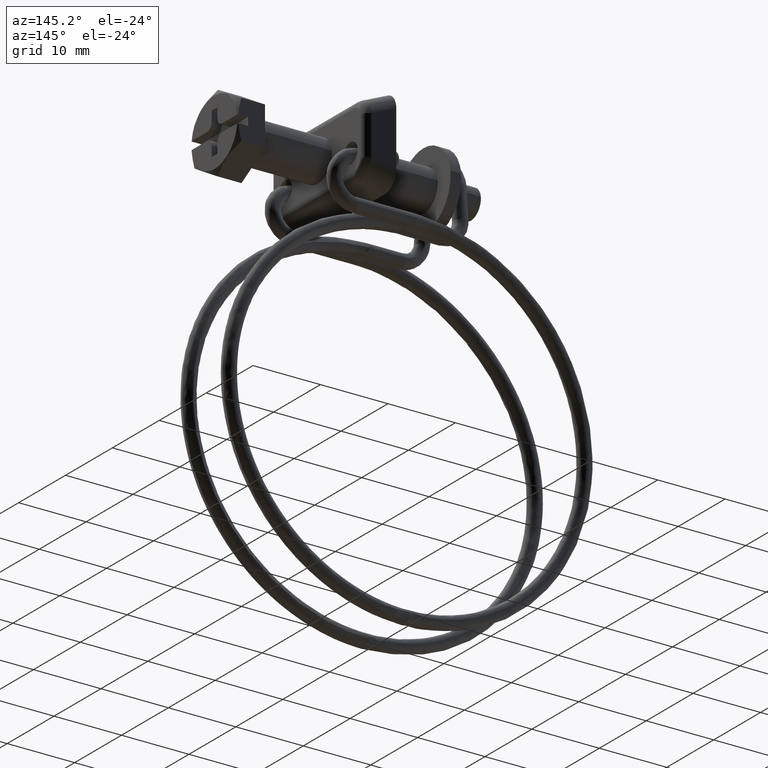
[diagram: clean part render]
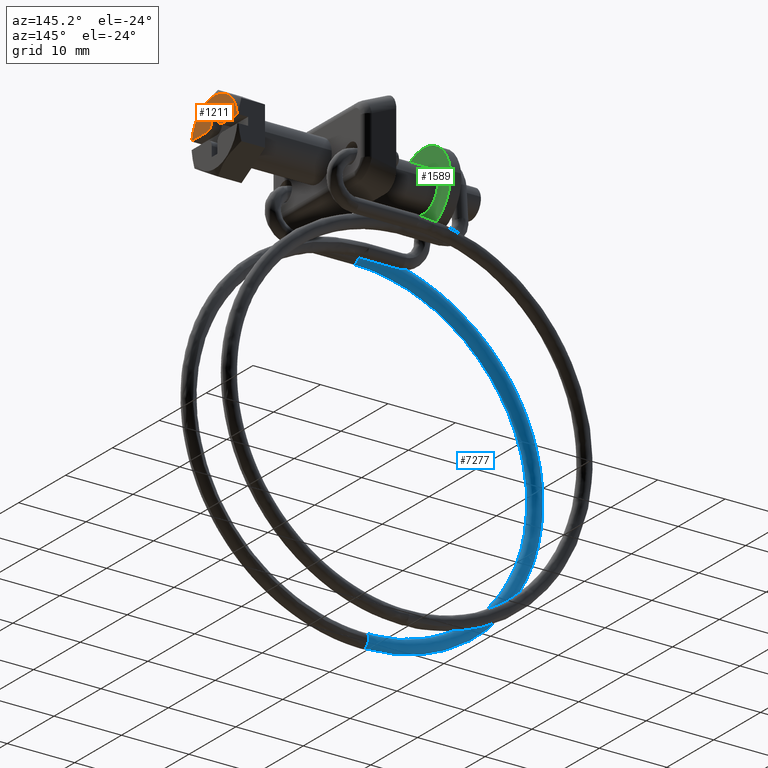
[diagram: same view with three faces highlighted in distinct colors, each labeled with its STEP entity id]
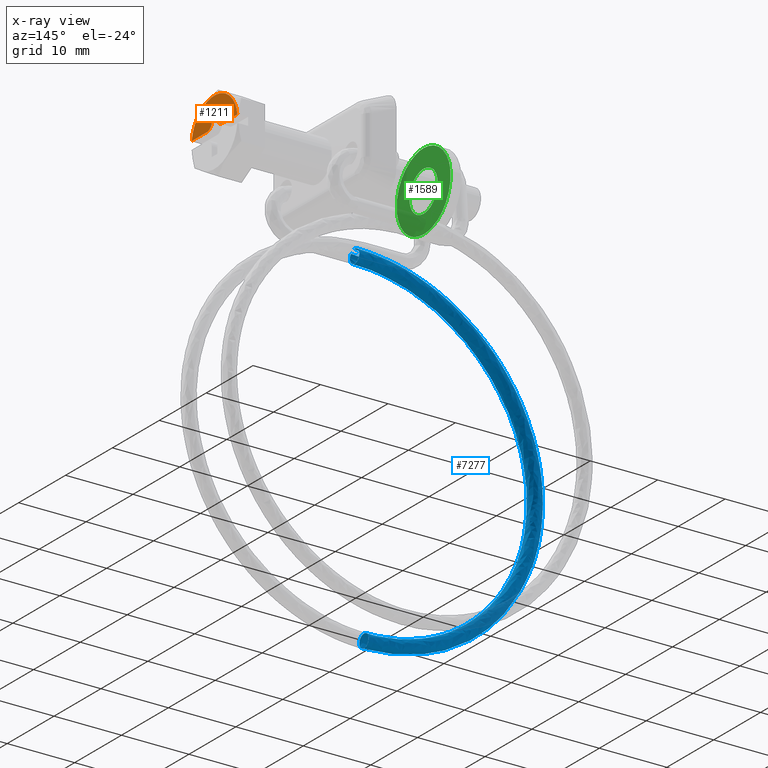
[diagram: x-ray of the same camera — body ghosted, the three highlighted faces saturated]
A machine part, auxiliary view with three faces highlighted in distinct colors.
The next image is the same camera in x-ray (body ghosted, the three faces saturated) — at least one of them is partly hidden behind the body in this view.
Their STEP definitions:

[orange] entity #1211 — the highlighted face is a freeform B-spline surface patch.
#763=CARTESIAN_POINT('',(4.0,0.599999000000025,3.099999000000110));
#764=VERTEX_POINT('',#763);
#765=CARTESIAN_POINT('',(4.0,-0.599998000000198,3.099999000000110));
#766=VERTEX_POINT('',#765);
#767=CARTESIAN_POINT('',(4.0,0.599999000000025,3.099999000000110));
#768=CARTESIAN_POINT('',(4.0,-0.599998000000198,3.099999000000110));
#769=QUASI_UNIFORM_CURVE('',1,(#767,#768),.UNSPECIFIED.,.F.,.U.);
#770=EDGE_CURVE('',#764,#766,#769,.T.);
#791=CARTESIAN_POINT('',(4.0,0.599999000000025,1.600000000000000));
#792=VERTEX_POINT('',#791);
#793=CARTESIAN_POINT('',(4.0,0.599999000000025,1.600000000000000));
#794=CARTESIAN_POINT('',(4.0,0.599999000000025,3.099999000000110));
#795=QUASI_UNIFORM_CURVE('',1,(#793,#794),.UNSPECIFIED.,.F.,.U.);
#796=EDGE_CURVE('',#792,#764,#795,.T.);
#822=CARTESIAN_POINT('',(4.0,1.599999000000025,0.600000000000108));
#823=VERTEX_POINT('',#822);
#824=CARTESIAN_POINT('',(4.0,0.599999000000025,1.600000000000000));
#825=CARTESIAN_POINT('',(4.000000000000000,0.599999000000025,0.600000000000000));
#826=CARTESIAN_POINT('',(4.0,1.599999000000025,0.600000000000108));
#834=(BOUNDED_CURVE()B_SPLINE_CURVE(2,(#824,#825,#826),.UNSPECIFIED.,.F.,.U.)CURVE()GEOMETRIC_REPRESENTATION_ITEM()QUASI_UNIFORM_CURVE()RATIONAL_B_SPLINE_CURVE((1.0,0.707106781186548,1.0))REPRESENTATION_ITEM(''));
#835=EDGE_CURVE('',#792,#823,#834,.T.);
#859=CARTESIAN_POINT('',(4.0,4.863124347857450,0.600000000000108));
#860=VERTEX_POINT('',#859);
#868=CARTESIAN_POINT('',(4.0,4.863124347857450,0.600000000000108));
#869=CARTESIAN_POINT('',(4.0,1.599999000000025,0.600000000000108));
#870=QUASI_UNIFORM_CURVE('',1,(#868,#869),.UNSPECIFIED.,.F.,.U.);
#871=EDGE_CURVE('',#860,#823,#870,.T.);
#1103=CARTESIAN_POINT('',(4.0,-1.599998000000085,0.600000000000000));
#1104=VERTEX_POINT('',#1103);
#1110=CARTESIAN_POINT('',(4.0,-4.863124347857450,0.600000000000108));
#1111=VERTEX_POINT('',#1110);
#1112=CARTESIAN_POINT('',(4.0,-1.599998000000085,0.600000000000000));
#1113=CARTESIAN_POINT('',(4.0,-4.863124347857450,0.600000000000108));
#1114=QUASI_UNIFORM_CURVE('',1,(#1112,#1113),.UNSPECIFIED.,.F.,.U.);
#1115=EDGE_CURVE('',#1104,#1111,#1114,.T.);
#1141=CARTESIAN_POINT('',(4.0,-0.599998000000085,1.600000000000000));
#1142=VERTEX_POINT('',#1141);
#1143=CARTESIAN_POINT('',(4.0,-1.599998000000085,0.600000000000000));
#1144=CARTESIAN_POINT('',(4.000000000000000,-0.599998000000085,0.600000000000000));
#1145=CARTESIAN_POINT('',(4.0,-0.599998000000085,1.600000000000000));
#1153=(BOUNDED_CURVE()B_SPLINE_CURVE(2,(#1143,#1144,#1145),.UNSPECIFIED.,.F.,.U.)CURVE()GEOMETRIC_REPRESENTATION_ITEM()QUASI_UNIFORM_CURVE()RATIONAL_B_SPLINE_CURVE((1.0,0.707106781186548,1.0))REPRESENTATION_ITEM(''));
#1154=EDGE_CURVE('',#1104,#1142,#1153,.T.);
#1171=CARTESIAN_POINT('',(4.0,-0.599998000000198,3.099999000000110));
#1172=CARTESIAN_POINT('',(4.0,-0.599998000000085,1.600000000000000));
#1173=QUASI_UNIFORM_CURVE('',1,(#1171,#1172),.UNSPECIFIED.,.F.,.U.);
#1174=EDGE_CURVE('',#766,#1142,#1173,.T.);
#1182=CARTESIAN_POINT('',(4.0,-5.348950542660116,0.385215133674925));
#1183=CARTESIAN_POINT('',(4.0,5.348950716578997,0.385215133674925));
#1184=CARTESIAN_POINT('',(4.0,-5.348950542660116,5.114782472336790));
#1185=CARTESIAN_POINT('',(4.0,5.348950716578997,5.114782472336790));
#1186=B_SPLINE_SURFACE_WITH_KNOTS('',1,1,((#1182,#1184),(#1183,#1185)),.UNSPECIFIED.,.F.,.F.,.U.,(2,2),(2,2),(0.0,10.697901259239110),(0.0,4.729567338661865),.UNSPECIFIED.);
#1187=ORIENTED_EDGE('',*,*,#1115,.F.);
#1188=ORIENTED_EDGE('',*,*,#1154,.T.);
#1189=ORIENTED_EDGE('',*,*,#1174,.F.);
#1190=ORIENTED_EDGE('',*,*,#770,.F.);
#1191=ORIENTED_EDGE('',*,*,#796,.F.);
#1192=ORIENTED_EDGE('',*,*,#835,.T.);
#1193=ORIENTED_EDGE('',*,*,#871,.F.);
#1194=CARTESIAN_POINT('',(4.0,-4.863124347857444,0.600000000000106));
#1195=CARTESIAN_POINT('',(4.000000000000001,-4.332601479348219,4.899997798236649));
#1196=CARTESIAN_POINT('',(4.0,0.0,4.899997798236650));
#1197=CARTESIAN_POINT('',(4.000000000000001,4.332601479348219,4.899997798236649));
#1198=CARTESIAN_POINT('',(4.0,4.863124347857444,0.600000000000107));
#1206=(BOUNDED_CURVE()B_SPLINE_CURVE(2,(#1194,#1195,#1196,#1197,#1198),.UNSPECIFIED.,.F.,.U.)B_SPLINE_CURVE_WITH_KNOTS((3,2,3),(0.0,0.500000000000000,1.0),.UNSPECIFIED.)CURVE()GEOMETRIC_REPRESENTATION_ITEM()RATIONAL_B_SPLINE_CURVE((1.0,0.749149195625625,1.0,0.749149195625625,1.0))REPRESENTATION_ITEM(''));
#1207=EDGE_CURVE('',#1111,#860,#1206,.T.);
#1208=ORIENTED_EDGE('',*,*,#1207,.F.);
#1209=EDGE_LOOP('',(#1187,#1188,#1189,#1190,#1191,#1192,#1193,#1208));
#1210=FACE_OUTER_BOUND('',#1209,.T.);
#1211=ADVANCED_FACE('',(#1210),#1186,.T.);

[blue] entity #7277 — the highlighted face is a freeform B-spline surface patch.
#4600=CARTESIAN_POINT('',(-21.150000000000951,-6.031830840989082,-6.889972466397994));
#4601=VERTEX_POINT('',#4600);
#4607=CARTESIAN_POINT('',(-21.150000000000951,-6.387194317541485,-6.852984781403181));
#4608=VERTEX_POINT('',#4607);
#4609=CARTESIAN_POINT('',(-21.150000000000951,-6.031830840989082,-6.889972466397994));
#4610=CARTESIAN_POINT('',(-21.150000000000951,-6.146864390291085,-6.856699426546245));
#4611=CARTESIAN_POINT('',(-21.150000000000951,-6.267732507744691,-6.843586101294443));
#4612=CARTESIAN_POINT('',(-21.150000000000951,-6.387194317541485,-6.852984781403181));
#4613=B_SPLINE_CURVE_WITH_KNOTS('',3,(#4609,#4610,#4611,#4612),.UNSPECIFIED.,.F.,.U.,(4,4),(0.942811783970586,1.0),.UNSPECIFIED.);
#4614=EDGE_CURVE('',#4601,#4608,#4613,.T.);
#4616=CARTESIAN_POINT('',(-21.150000000000951,-7.089616038591515,-7.223776114276905));
#4617=VERTEX_POINT('',#4616);
#4627=CARTESIAN_POINT('',(-21.150000000000951,-6.232809605149675,-8.847017218596639));
#4628=VERTEX_POINT('',#4627);
#4629=CARTESIAN_POINT('',(-21.150000000000951,-7.089616038591515,-7.223776114276905));
#4630=CARTESIAN_POINT('',(-21.150000000000951,-7.246677353475226,-7.419852851303408));
#4631=CARTESIAN_POINT('',(-21.150000000000951,-7.326418725889536,-7.676615968585987));
#4632=CARTESIAN_POINT('',(-21.150000000000951,-7.286809268347450,-8.188211591850259));
#4633=CARTESIAN_POINT('',(-21.150000000000951,-7.159273274820140,-8.439303261629041));
#4634=CARTESIAN_POINT('',(-21.150000000000951,-6.761558029072670,-8.779859073659999));
#4635=CARTESIAN_POINT('',(-21.150000000000951,-6.493827840804119,-8.867226130191499));
#4636=CARTESIAN_POINT('',(-21.150000000000951,-6.232809605149675,-8.847017218596639));
#4637=B_SPLINE_CURVE_WITH_KNOTS('',3,(#4629,#4630,#4631,#4632,#4633,#4634,#4635,#4636),.UNSPECIFIED.,.F.,.U.,(4,2,2,4),(0.130000056805628,0.250000000000000,0.375000000000000,0.500000000000000),.UNSPECIFIED.);
#4638=EDGE_CURVE('',#4617,#4628,#4637,.T.);
#4640=CARTESIAN_POINT('',(-21.150000000000951,-5.310171806506379,-7.833820450531610));
#4641=VERTEX_POINT('',#4640);
#4642=CARTESIAN_POINT('',(-21.150000000000951,-6.232809605149675,-8.847017218596639));
#4643=CARTESIAN_POINT('',(-21.150000000000951,-5.971785953663127,-8.826808232096671));
#4644=CARTESIAN_POINT('',(-21.150000000000951,-5.720686803928123,-8.699272135115836));
#4645=CARTESIAN_POINT('',(-21.150000000000951,-5.393365281887371,-8.317028930544577));
#4646=CARTESIAN_POINT('',(-21.150000000000951,-5.306840125982963,-8.075071297144126));
#4647=CARTESIAN_POINT('',(-21.150000000000951,-5.310171806506379,-7.833820450531610));
#4648=B_SPLINE_CURVE_WITH_KNOTS('',3,(#4642,#4643,#4644,#4645,#4646,#4647),.UNSPECIFIED.,.F.,.U.,(4,2,4),(0.500000000000000,0.625000000000000,0.740274298675809),.UNSPECIFIED.);
#4649=EDGE_CURVE('',#4628,#4641,#4648,.T.);
#4724=CARTESIAN_POINT('',(-21.150000000000951,-5.310171806506379,-7.833820450531610));
#4725=CARTESIAN_POINT('',(-21.150000000000951,-5.310452003186184,-7.813459730732497));
#4726=CARTESIAN_POINT('',(-21.150000000000951,-5.311371785250680,-7.793103891826287));
#4727=CARTESIAN_POINT('',(-21.150000000000951,-5.333133947655190,-7.511684642209672));
#4728=CARTESIAN_POINT('',(-21.150000000000951,-5.460647574557894,-7.260484940485839));
#4729=CARTESIAN_POINT('',(-21.150000000000951,-5.767352415556150,-6.997678151845808));
#4730=CARTESIAN_POINT('',(-21.150000000000951,-5.895490085431421,-6.929652589896923));
#4731=CARTESIAN_POINT('',(-21.150000000000951,-6.031830840989082,-6.889972466397994));
#4732=B_SPLINE_CURVE_WITH_KNOTS('',3,(#4724,#4725,#4726,#4727,#4728,#4729,#4730,#4731),.UNSPECIFIED.,.F.,.U.,(4,2,2,4),(0.740274298675810,0.750000000000000,0.875000000000000,0.942811783970586),.UNSPECIFIED.);
#4733=EDGE_CURVE('',#4641,#4601,#4732,.T.);
#6112=CARTESIAN_POINT('',(-21.149999999998919,-4.300002000000003,-58.850000999999999));
#6113=VERTEX_POINT('',#6112);
#6114=CARTESIAN_POINT('',(-21.149999999998901,-3.302485887035315,-59.919730657954759));
#6115=VERTEX_POINT('',#6114);
#6116=CARTESIAN_POINT('',(-21.149999999998919,-4.300002000000003,-58.850000999999999));
#6117=CARTESIAN_POINT('',(-21.149999999998919,-4.038196562363256,-58.850001438668563));
#6118=CARTESIAN_POINT('',(-21.149999999998919,-3.778000607902755,-58.957775164691682));
#6119=CARTESIAN_POINT('',(-21.149999999998919,-3.407742631726005,-59.328016695221827));
#6120=CARTESIAN_POINT('',(-21.149999999998911,-3.299960596688532,-59.588204614319672));
#6121=CARTESIAN_POINT('',(-21.149999999998911,-3.299953531839379,-59.873276473137132));
#6122=CARTESIAN_POINT('',(-21.149999999998911,-3.300804581624378,-59.896535733557762));
#6123=CARTESIAN_POINT('',(-21.149999999998901,-3.302485887035315,-59.919730657954759));
#6124=B_SPLINE_CURVE_WITH_KNOTS('',3,(#6116,#6117,#6118,#6119,#6120,#6121,#6122,#6123),.UNSPECIFIED.,.F.,.U.,(4,2,2,4),(0.500000000000000,0.625000000000000,0.750000000000000,0.761111541812489),.UNSPECIFIED.);
#6125=EDGE_CURVE('',#6113,#6115,#6124,.T.);
#6127=CARTESIAN_POINT('',(-21.149999999998752,-5.028950104822924,-60.534537615100980));
#6128=VERTEX_POINT('',#6127);
#6129=CARTESIAN_POINT('',(-21.149999999998752,-5.028950104822924,-60.534537615100980));
#6130=CARTESIAN_POINT('',(-21.149999999998851,-5.200678408402418,-60.351169861159242));
#6131=CARTESIAN_POINT('',(-21.149999999998869,-5.300001999999999,-60.101328293313877));
#6132=CARTESIAN_POINT('',(-21.149999999998890,-5.300002000000001,-59.588201612200862));
#6133=CARTESIAN_POINT('',(-21.149999999998901,-5.192228903609815,-59.328014341236717));
#6134=CARTESIAN_POINT('',(-21.149999999998919,-4.821988658763284,-58.957774096390189));
#6135=CARTESIAN_POINT('',(-21.149999999998919,-4.561801387799152,-58.850001000000013));
#6136=CARTESIAN_POINT('',(-21.149999999998919,-4.300002000000003,-58.850000999999999));
#6137=B_SPLINE_CURVE_WITH_KNOTS('',3,(#6129,#6130,#6131,#6132,#6133,#6134,#6135,#6136),.UNSPECIFIED.,.F.,.U.,(4,2,2,4),(0.130000056805568,0.250000000000000,0.375000000000000,0.500000000000000),.UNSPECIFIED.);
#6138=EDGE_CURVE('',#6128,#6113,#6137,.T.);
#6140=CARTESIAN_POINT('',(-21.149977872803269,-4.306285019941678,-60.849961522083767));
#6141=VERTEX_POINT('',#6140);
#6216=CARTESIAN_POINT('',(-21.149999999998901,-3.302485887035315,-59.919730657954759));
#6217=CARTESIAN_POINT('',(-21.149997164973339,-3.320535383567858,-60.157462601631323));
#6218=CARTESIAN_POINT('',(-21.149993369964221,-3.426078744593278,-60.388434106579084));
#6219=CARTESIAN_POINT('',(-21.149985258126112,-3.782184756067977,-60.742202801540508));
#6220=CARTESIAN_POINT('',(-21.149980978784949,-4.043596731425591,-60.849967568010037));
#6221=CARTESIAN_POINT('',(-21.149977872803269,-4.306285019941678,-60.849961522083767));
#6222=B_SPLINE_CURVE_WITH_KNOTS('',3,(#6216,#6217,#6218,#6219,#6220,#6221),.UNSPECIFIED.,.F.,.U.,(4,2,4),(0.761111541812488,0.875000000000000,1.0),.UNSPECIFIED.);
#6223=EDGE_CURVE('',#6115,#6141,#6222,.T.);
#7005=CARTESIAN_POINT('',(-20.730799609353920,-5.010252906169817,-60.554501892742493));
#7006=CARTESIAN_POINT('',(-20.733816931504730,-5.193258939862751,-60.369561039536272));
#7007=CARTESIAN_POINT('',(-20.742128439505681,-5.407574417776637,-59.848921838804173));
#7008=CARTESIAN_POINT('',(-20.754231897863590,-5.083829596800820,-59.066174425972449));
#7009=CARTESIAN_POINT('',(-20.758850142397179,-4.300038161162180,-58.741984493368108));
#7010=CARTESIAN_POINT('',(-20.753281102858640,-3.516059640535795,-59.066080283889661));
#7011=CARTESIAN_POINT('',(-20.740765516387508,-3.191961414226734,-59.850012865120043));
#7012=CARTESIAN_POINT('',(-20.728472969448632,-3.521036966530352,-60.644999449539633));
#7013=CARTESIAN_POINT('',(-20.725434740841649,-4.060936566603380,-60.859213814821047));
#7014=CARTESIAN_POINT('',(-20.725745158037519,-4.333648132971815,-60.850000999803719));
#7015=CARTESIAN_POINT('',(-20.870533072902159,-5.010252958038715,-60.554501894124463));
#7016=CARTESIAN_POINT('',(-20.872544621002710,-5.193258991350971,-60.369561041274082));
#7017=CARTESIAN_POINT('',(-20.878085626336681,-5.407574468227073,-59.848921840958312));
#7018=CARTESIAN_POINT('',(-20.886154598575271,-5.083829645763908,-59.066174427497756));
#7019=CARTESIAN_POINT('',(-20.889233428264330,-4.300038209582587,-58.741984493368413));
#7020=CARTESIAN_POINT('',(-20.885520735238650,-3.516059689675545,-59.066080282362577));
#7021=CARTESIAN_POINT('',(-20.877177010924569,-3.191961464929281,-59.850012862961329));
#7022=CARTESIAN_POINT('',(-20.868981979631961,-3.521037018743392,-60.644999448022347));
#7023=CARTESIAN_POINT('',(-20.866956493893980,-4.060936619172594,-60.859213814355421));
#7024=CARTESIAN_POINT('',(-20.867163438691229,-4.333648185492317,-60.850000999869152));
#7025=CARTESIAN_POINT('',(-21.010266536450409,-5.010253009907612,-60.554501895506426));
#7026=CARTESIAN_POINT('',(-21.011272310500679,-5.193259042839192,-60.369561043011878));
#7027=CARTESIAN_POINT('',(-21.014042813167659,-5.407574518677511,-59.848921843112493));
#7028=CARTESIAN_POINT('',(-21.018077299286968,-5.083829694726997,-59.066174429023043));
#7029=CARTESIAN_POINT('',(-21.019616714131491,-4.300038258002995,-58.741984493368697));
#7030=CARTESIAN_POINT('',(-21.017760367618649,-3.516059738815289,-59.066080280835507));
#7031=CARTESIAN_POINT('',(-21.013588505461609,-3.191961515631832,-59.850012860802622));
#7032=CARTESIAN_POINT('',(-21.009490989815308,-3.521037070956433,-60.644999446505132));
#7033=CARTESIAN_POINT('',(-21.008478246946311,-4.060936671741805,-60.859213813889767));
#7034=CARTESIAN_POINT('',(-21.008581719344939,-4.333648238012819,-60.850000999934572));
#7035=CARTESIAN_POINT('',(-24.643153568134849,-5.010254358431013,-60.554501931435823));
#7036=CARTESIAN_POINT('',(-24.618010534224229,-5.193260381465536,-60.369561088192363));
#7037=CARTESIAN_POINT('',(-24.548751596308080,-5.407575830322789,-59.848921899117528));
#7038=CARTESIAN_POINT('',(-24.447894727628441,-5.083830967703173,-59.066174468678987));
#7039=CARTESIAN_POINT('',(-24.409411372815221,-4.300039516870168,-58.741984493376272));
#7040=CARTESIAN_POINT('',(-24.455817604224318,-3.516061016384367,-59.066080241133527));
#7041=CARTESIAN_POINT('',(-24.560108693914799,-3.191962833831709,-59.850012804679082));
#7042=CARTESIAN_POINT('',(-24.662541218214191,-3.521038428427106,-60.644999407058783));
#7043=CARTESIAN_POINT('',(-24.687858463465240,-4.060938038472456,-60.859213801783817));
#7044=CARTESIAN_POINT('',(-24.685271789026078,-4.333649603477083,-60.850001001635611));
#7045=CARTESIAN_POINT('',(-28.133561553254410,-5.037100136020049,-59.859950709026769));
#7046=CARTESIAN_POINT('',(-28.083296025023550,-5.219912902652431,-59.680009771304093));
#7047=CARTESIAN_POINT('',(-27.944834727498311,-5.433696007643421,-59.173143323501577));
#7048=CARTESIAN_POINT('',(-27.743203381244889,-5.109175929880165,-58.410452188082019));
#7049=CARTESIAN_POINT('',(-27.666268109125831,-4.325088684204220,-58.093915005985266));
#7050=CARTESIAN_POINT('',(-27.759042662265092,-3.541466874593328,-58.408782502865577));
#7051=CARTESIAN_POINT('',(-27.967539645215851,-3.218170302980469,-59.171975877659918));
#7052=CARTESIAN_POINT('',(-28.172321015546490,-3.548033223660803,-59.946592851644752));
#7053=CARTESIAN_POINT('',(-28.222934824086739,-4.088127429825660,-60.155772662198721));
#7054=CARTESIAN_POINT('',(-28.217763588275179,-4.360819113164257,-60.147074231838857));
#7055=CARTESIAN_POINT('',(-34.586161108746921,-5.140424527725062,-57.186881817552361));
#7056=CARTESIAN_POINT('',(-34.489466231971157,-5.322493829005451,-57.026174809684150));
#7057=CARTESIAN_POINT('',(-34.223110767853562,-5.534228986203506,-56.572290096599652));
#7058=CARTESIAN_POINT('',(-33.835236236955389,-5.206726627650787,-55.886752495828603));
#7059=CARTESIAN_POINT('',(-33.687237261950827,-4.421501450845010,-55.599654328464140));
#7060=CARTESIAN_POINT('',(-33.865705972025857,-3.639251847364347,-55.879021964639371));
#7061=CARTESIAN_POINT('',(-34.266787802514571,-3.319039104528565,-56.562434692842388));
#7062=CARTESIAN_POINT('',(-34.660721977074331,-3.651930897261656,-57.258692786443902));
#7063=CARTESIAN_POINT('',(-34.758086834297082,-4.192773720105009,-57.448505398909873));
#7064=CARTESIAN_POINT('',(-34.748139022590657,-4.465388916937521,-57.441785723982683));
#7065=CARTESIAN_POINT('',(-37.545247760210252,-5.216860942073847,-55.209422303783803));
#7066=CARTESIAN_POINT('',(-37.427268865864512,-5.398380367342158,-55.062940944273556));
#7067=CARTESIAN_POINT('',(-37.102284500573028,-5.608600837467366,-54.648242166409183));
#7068=CARTESIAN_POINT('',(-36.629032868032560,-5.278892747767942,-54.019768257743763));
#7069=CARTESIAN_POINT('',(-36.448457060754627,-4.492825943275191,-53.754443543616482));
#7070=CARTESIAN_POINT('',(-36.666209456629218,-3.711591240120316,-54.007555051296023));
#7071=CARTESIAN_POINT('',(-37.155575516898843,-3.393659334547923,-54.631961043295327));
#7072=CARTESIAN_POINT('',(-37.636220613138534,-3.728791317869967,-55.270263956338013));
#7073=CARTESIAN_POINT('',(-37.755016960844181,-4.270187826712646,-55.445752353611667));
#7074=CARTESIAN_POINT('',(-37.742879484021287,-4.542746453194340,-55.440496190257733));
#7075=CARTESIAN_POINT('',(-42.483230845993702,-5.407751135894482,-50.270969433394903));
#7076=CARTESIAN_POINT('',(-42.329748365600182,-5.587898080473701,-50.159995037666910));
#7077=CARTESIAN_POINT('',(-41.906965911467637,-5.794337918742831,-49.843103652744567));
#7078=CARTESIAN_POINT('',(-41.291297873289778,-5.459124363604613,-49.357059698864532));
#7079=CARTESIAN_POINT('',(-41.056381086168763,-4.670956871432921,-49.146081134387920));
#7080=CARTESIAN_POINT('',(-41.339662074882312,-3.892255341361118,-49.333657815033114));
#7081=CARTESIAN_POINT('',(-41.976293882546898,-3.580016364771503,-49.810784049293098));
#7082=CARTESIAN_POINT('',(-42.601580311784488,-3.920739823724200,-50.304431868568592));
#7083=CARTESIAN_POINT('',(-42.756126243165973,-4.463518322916602,-50.444167281063457));
#7084=CARTESIAN_POINT('',(-42.740336215136217,-4.735935750817605,-50.442564016408198));
#7085=CARTESIAN_POINT('',(-44.460193913923163,-5.522129785828970,-47.311919726416292));
#7086=CARTESIAN_POINT('',(-44.292505188889827,-5.701454688009635,-47.222212099640217));
#7087=CARTESIAN_POINT('',(-43.830590249078853,-5.905630130355816,-46.963902102980853));
#7088=CARTESIAN_POINT('',(-43.157936353362103,-5.567119096372089,-46.563166060973799));
#7089=CARTESIAN_POINT('',(-42.901275811912399,-4.777693404842669,-46.384737928473108));
#7090=CARTESIAN_POINT('',(-43.210777115910162,-4.000509109717266,-46.533062758873690));
#7091=CARTESIAN_POINT('',(-43.906335174793220,-3.691679892584036,-46.921976308998282));
#7092=CARTESIAN_POINT('',(-44.589497733975037,-4.035752345867816,-47.328983477274967));
#7093=CARTESIAN_POINT('',(-44.758348342373637,-4.579358583235461,-47.447304767401810));
#7094=CARTESIAN_POINT('',(-44.741096798988131,-4.851691440750718,-47.447889393354018));
#7095=CARTESIAN_POINT('',(-47.132371426079267,-5.771514720817596,-40.860170040463423));
#7096=CARTESIAN_POINT('',(-46.945484838022367,-5.949047953918540,-40.816814052417087));
#7097=CARTESIAN_POINT('',(-46.430687513075817,-6.148288069136690,-40.686184163108692));
#7098=CARTESIAN_POINT('',(-45.681024758602867,-5.802590069035269,-40.471379586429343));
#7099=CARTESIAN_POINT('',(-45.394980405526788,-5.010422089638671,-40.363896215928932));
#7100=CARTESIAN_POINT('',(-45.739915001957392,-4.236544659156639,-40.426670317596823));
#7101=CARTESIAN_POINT('',(-46.515104105337088,-3.935147127524183,-40.623321353655520));
#7102=CARTESIAN_POINT('',(-47.276478608855570,-4.286518826671203,-40.841492306898949));
#7103=CARTESIAN_POINT('',(-47.464660098600682,-4.831929147249369,-40.913140796590902));
#7104=CARTESIAN_POINT('',(-47.445433510294450,-5.104077680762572,-40.918494003780992));
#7105=CARTESIAN_POINT('',(-47.826541733603221,-5.906423139066774,-37.370001939005917));
#7106=CARTESIAN_POINT('',(-47.634670280536703,-6.082987436544982,-37.351712942696082));
#7107=CARTESIAN_POINT('',(-47.106141658975993,-6.279558524130327,-37.290132525718832));
#7108=CARTESIAN_POINT('',(-46.336482993192867,-5.929973808802219,-37.175879787790649));
#7109=CARTESIAN_POINT('',(-46.042808919294423,-5.136322798619360,-37.106763383683273));
#7110=CARTESIAN_POINT('',(-46.396944028306322,-4.364233722358904,-37.123271604144463));
#7111=CARTESIAN_POINT('',(-47.192809912644123,-4.066855250328163,-37.215946966757294));
#7112=CARTESIAN_POINT('',(-47.974492717386767,-4.422174385657972,-37.331995190999642));
#7113=CARTESIAN_POINT('',(-48.167693611338407,-4.968560355429472,-37.378403004537859));
#7114=CARTESIAN_POINT('',(-48.147954188218819,-5.240609206422697,-37.386335063067079));
#7115=CARTESIAN_POINT('',(-47.826541733603221,-6.176345796094319,-30.386928090620071));
#7116=CARTESIAN_POINT('',(-47.634670280536703,-6.350971493587854,-30.418791930705289));
#7117=CARTESIAN_POINT('',(-47.106141658975993,-6.542202518539391,-30.495362390590390));
#7118=CARTESIAN_POINT('',(-46.336482993192867,-6.184841449532939,-30.582288955457319));
#7119=CARTESIAN_POINT('',(-46.042808919294423,-5.388223262391117,-30.589935339850221));
#7120=CARTESIAN_POINT('',(-46.396944028306322,-4.619712239588632,-30.513877001320449));
#7121=CARTESIAN_POINT('',(-47.192809912644123,-4.330374909522241,-30.398522816793431));
#7122=CARTESIAN_POINT('',(-47.974492717386767,-4.693591886079861,-30.310248776341869));
#7123=CARTESIAN_POINT('',(-48.167693611338407,-5.241929888032543,-30.306156253973860));
#7124=CARTESIAN_POINT('',(-48.147954188218819,-5.513779299008771,-30.319247954781840));
#7125=CARTESIAN_POINT('',(-47.132371426098047,-6.311254214343487,-26.896759989162479));
#7126=CARTESIAN_POINT('',(-46.945484838051676,-6.484910976214017,-26.953690820982398));
#7127=CARTESIAN_POINT('',(-46.430687513100807,-6.673472973534357,-27.099310753188330));
#7128=CARTESIAN_POINT('',(-45.681024758621263,-6.312225189298641,-27.286789156823609));
#7129=CARTESIAN_POINT('',(-45.394980405520620,-5.514123971371557,-27.332802507606409));
#7130=CARTESIAN_POINT('',(-45.739915001969408,-4.747401302789229,-27.210478287856780));
#7131=CARTESIAN_POINT('',(-46.515104105363292,-4.462083032325781,-26.991148429902051));
#7132=CARTESIAN_POINT('',(-47.276478608885057,-4.829247445066085,-26.800751660424758));
#7133=CARTESIAN_POINT('',(-47.464660098634560,-5.378561096211466,-26.771418461924728));
#7134=CARTESIAN_POINT('',(-47.445433510324193,-5.650310824668251,-26.787089014074802));
#7135=CARTESIAN_POINT('',(-44.460193913906373,-6.560639149332117,-20.445010303210179));
#7136=CARTESIAN_POINT('',(-44.292505188862513,-6.732504242123450,-20.548292773763379));
#7137=CARTESIAN_POINT('',(-43.830590249055803,-6.916130912312578,-20.821592813340889));
#7138=CARTESIAN_POINT('',(-43.157936353345669,-6.547696161964306,-21.195002682269632));
#7139=CARTESIAN_POINT('',(-42.901275811920598,-5.746852656168036,-21.311960795058798));
#7140=CARTESIAN_POINT('',(-43.210777115900093,-4.983436852231929,-21.104085846602882));
#7141=CARTESIAN_POINT('',(-43.906335174769012,-4.705550267266794,-20.692493474545991));
#7142=CARTESIAN_POINT('',(-44.589497733947482,-5.080013925870543,-20.313260490084581));
#7143=CARTESIAN_POINT('',(-44.758348342341733,-5.631131660227723,-20.237254491106359));
#7144=CARTESIAN_POINT('',(-44.741096798960328,-5.902697064681389,-20.257693624488390));
#7145=CARTESIAN_POINT('',(-42.483230845989489,-6.675017799261480,-17.485960596243029));
#7146=CARTESIAN_POINT('',(-42.329748365583633,-6.846060849654048,-17.610509835762429));
#7147=CARTESIAN_POINT('',(-41.906965911469577,-7.027423123916740,-17.942391263565600));
#7148=CARTESIAN_POINT('',(-41.291297873313113,-6.655690894730564,-18.401109044393731));
#7149=CARTESIAN_POINT('',(-41.056381086196573,-5.853589189573368,-18.550617589191930));
#7150=CARTESIAN_POINT('',(-41.339662074897362,-5.091690620584466,-18.303490790445551));
#7151=CARTESIAN_POINT('',(-41.976293882552667,-4.817213795079962,-17.803685734281331));
#7152=CARTESIAN_POINT('',(-42.601580311761808,-5.195026448006708,-17.337812098804381));
#7153=CARTESIAN_POINT('',(-42.756126243169327,-5.746971920541793,-17.240391977498689));
#7154=CARTESIAN_POINT('',(-42.740336215138313,-6.018452754612583,-17.263019001474490));
#7155=CARTESIAN_POINT('',(-37.545247760218672,-6.865907993092384,-12.547507725830030));
#7156=CARTESIAN_POINT('',(-37.427268865885260,-7.035578562795770,-12.707563929099541));
#7157=CARTESIAN_POINT('',(-37.102284500575202,-7.213160205212501,-13.137252749898950));
#7158=CARTESIAN_POINT('',(-36.629032868013290,-6.835922510567219,-13.738400485493679));
#7159=CARTESIAN_POINT('',(-36.448457060730959,-6.031720117739494,-13.942255179870291));
#7160=CARTESIAN_POINT('',(-36.666209456618290,-5.272354721829180,-13.629593554154869));
#7161=CARTESIAN_POINT('',(-37.155575516897322,-5.003570825301431,-12.982508740231481));
#7162=CARTESIAN_POINT('',(-37.636220613165328,-5.386974953874797,-12.371980010971701));
#7163=CARTESIAN_POINT('',(-37.755016960845040,-5.940302416753001,-12.238806904849371));
#7164=CARTESIAN_POINT('',(-37.742879484023391,-6.211642052238425,-12.265086827557200));
#7165=CARTESIAN_POINT('',(-34.586161108749323,-6.942344407437522,-10.570048212066530));
#7166=CARTESIAN_POINT('',(-34.489466231974852,-7.111465101128020,-10.744330063693051));
#7167=CARTESIAN_POINT('',(-34.223110767849562,-7.287532056466322,-11.213204819679980));
#7168=CARTESIAN_POINT('',(-33.835236236960313,-6.908088630684733,-11.871416247399130));
#7169=CARTESIAN_POINT('',(-33.687237261953648,-6.103044610167672,-12.097044395062500));
#7170=CARTESIAN_POINT('',(-33.865705972018723,-5.344694114586401,-11.758126640765539));
#7171=CARTESIAN_POINT('',(-34.266787802528228,-5.078191055318939,-11.052035090680970));
#7172=CARTESIAN_POINT('',(-34.660721977077642,-5.463835374480738,-10.383551180886579));
#7173=CARTESIAN_POINT('',(-34.758086834299313,-6.017716523354828,-10.236053859578160));
#7174=CARTESIAN_POINT('',(-34.748139022593058,-6.288999588495019,-10.263797293848050));
#7175=CARTESIAN_POINT('',(-28.133561553256861,-7.045668799139644,-7.896979320603969));
#7176=CARTESIAN_POINT('',(-28.083296025024701,-7.214046027479850,-8.090495102118988));
#7177=CARTESIAN_POINT('',(-27.944834727507100,-7.388065035026285,-8.612351592834981));
#7178=CARTESIAN_POINT('',(-27.743203381244790,-7.005639328454735,-9.347716555183787));
#7179=CARTESIAN_POINT('',(-27.666268109127810,-6.199457376804132,-9.602783717552713));
#7180=CARTESIAN_POINT('',(-27.759042662277022,-5.442479087351105,-9.228366102656830));
#7181=CARTESIAN_POINT('',(-27.967539645207079,-5.179059856872934,-8.442493905915910));
#7182=CARTESIAN_POINT('',(-28.172321015548022,-5.567733048072557,-7.695651115705406));
#7183=CARTESIAN_POINT('',(-28.222934824089322,-6.122362813638633,-7.528786596334282));
#7184=CARTESIAN_POINT('',(-28.217763588277592,-6.393569392266238,-7.558508786025809));
#7185=CARTESIAN_POINT('',(-24.643153537345629,-7.072610921900551,-7.202462152873003));
#7186=CARTESIAN_POINT('',(-24.618010503758960,-7.240794555778177,-7.400977483175999));
#7187=CARTESIAN_POINT('',(-24.548751566736659,-7.414280279241469,-7.936605721561612));
#7188=CARTESIAN_POINT('',(-24.447894699385500,-7.031077939173740,-8.692025518131947));
#7189=CARTESIAN_POINT('',(-24.409411345100740,-6.224599640176068,-8.954744888246239));
#7190=CARTESIAN_POINT('',(-24.455817575941289,-5.467978709468567,-8.571099644265271));
#7191=CARTESIAN_POINT('',(-24.560108664307990,-5.205362550754680,-7.764489739521873));
#7192=CARTESIAN_POINT('',(-24.662541187238670,-5.594824453847586,-6.997278823251119));
#7193=CARTESIAN_POINT('',(-24.687858432128440,-6.149649148055378,-6.825380116561227));
#7194=CARTESIAN_POINT('',(-24.685271757711511,-6.420835810936684,-6.855616651403437));
#7195=CARTESIAN_POINT('',(-21.010273825192652,-7.072512071443727,-7.202426771929577));
#7196=CARTESIAN_POINT('',(-21.011279546775899,-7.240696047006288,-7.400942482468088));
#7197=CARTESIAN_POINT('',(-21.014049904917329,-7.414182721313569,-7.936571765019262));
#7198=CARTESIAN_POINT('',(-21.018084180573261,-7.030981817663736,-8.691993064479718));
#7199=CARTESIAN_POINT('',(-21.019623515111661,-6.224504079163329,-8.954713003838627));
#7200=CARTESIAN_POINT('',(-21.017767265435470,-5.467882472573271,-8.571067073429552));
#7201=CARTESIAN_POINT('',(-21.013595620906159,-5.205264835226261,-7.764455612319609));
#7202=CARTESIAN_POINT('',(-21.009498319012032,-5.594725336356975,-6.997243150315103));
#7203=CARTESIAN_POINT('',(-21.008485628974981,-6.149549693994605,-6.825344058225985));
#7204=CARTESIAN_POINT('',(-21.008589095976330,-6.420736391056388,-6.855580632504099));
#7205=CARTESIAN_POINT('',(-20.870547650384349,-7.072508269502209,-7.202425411123748));
#7206=CARTESIAN_POINT('',(-20.872559093550858,-7.240692258206500,-7.400941136286707));
#7207=CARTESIAN_POINT('',(-20.878099809833721,-7.414178969084714,-7.936570458998102));
#7208=CARTESIAN_POINT('',(-20.886168361145561,-7.030978120681737,-8.691991816262039));
#7209=CARTESIAN_POINT('',(-20.889247030222389,-6.224500403738921,-8.954711777514973));
#7210=CARTESIAN_POINT('',(-20.885534530869968,-5.467878771153370,-8.571065820704815));
#7211=CARTESIAN_POINT('',(-20.877191241811371,-5.205261076935845,-7.764454299734605));
#7212=CARTESIAN_POINT('',(-20.868996638023098,-5.594721524144921,-6.997241778278788));
#7213=CARTESIAN_POINT('',(-20.866971257949022,-6.149545868837547,-6.825342671366620));
#7214=CARTESIAN_POINT('',(-20.867178191951709,-6.420732567213961,-6.855579247161499));
#7215=CARTESIAN_POINT('',(-20.730821475576050,-7.072504467560690,-7.202424050317920));
#7216=CARTESIAN_POINT('',(-20.733838640325828,-7.240688469406712,-7.400939790105323));
#7217=CARTESIAN_POINT('',(-20.742149714750099,-7.414175216855854,-7.936569152976945));
#7218=CARTESIAN_POINT('',(-20.754252541717872,-7.030974423699735,-8.691990568044357));
#7219=CARTESIAN_POINT('',(-20.758870545333099,-6.224496728314511,-8.954710551191326));
#7220=CARTESIAN_POINT('',(-20.753301796304481,-5.467875069733471,-8.571064567980075));
#7221=CARTESIAN_POINT('',(-20.740786862716579,-5.205257318645428,-7.764452987149602));
#7222=CARTESIAN_POINT('',(-20.728494957034190,-5.594717711932868,-6.997240406242473));
#7223=CARTESIAN_POINT('',(-20.725456886923052,-6.149542043680485,-6.825341284507255));
#7224=CARTESIAN_POINT('',(-20.725767287927091,-6.420728743371535,-6.855577861818899));
#7225=B_SPLINE_SURFACE_WITH_KNOTS('',3,3,((#7005,#7015,#7025,#7035,#7045,#7055,#7065,#7075,#7085,#7095,#7105,#7115,#7125,#7135,#7145,#7155,#7165,#7175,#7185,#7195,#7205,#7215),(#7006,#7016,#7026,#7036,#7046,#7056,#7066,#7076,#7086,#7096,#7106,#7116,#7126,#7136,#7146,#7156,#7166,#7176,#7186,#7196,#7206,#7216),(#7007,#7017,#7027,#7037,#7047,#7057,#7067,#7077,#7087,#7097,#7107,#7117,#7127,#7137,#7147,#7157,#7167,#7177,#7187,#7197,#7207,#7217),(#7008,#7018,#7028,#7038,#7048,#7058,#7068,#7078,#7088,#7098,#7108,#7118,#7128,#7138,#7148,#7158,#7168,#7178,#7188,#7198,#7208,#7218),(#7009,#7019,#7029,#7039,#7049,#7059,#7069,#7079,#7089,#7099,#7109,#7119,#7129,#7139,#7149,#7159,#7169,#7179,#7189,#7199,#7209,#7219),(#7010,#7020,#7030,#7040,#7050,#7060,#7070,#7080,#7090,#7100,#7110,#7120,#7130,#7140,#7150,#7160,#7170,#7180,#7190,#7200,#7210,#7220),(#7011,#7021,#7031,#7041,#7051,#7061,#7071,#7081,#7091,#7101,#7111,#7121,#7131,#7141,#7151,#7161,#7171,#7181,#7191,#7201,#7211,#7221),(#7012,#7022,#7032,#7042,#7052,#7062,#7072,#7082,#7092,#7102,#7112,#7122,#7132,#7142,#7152,#7162,#7172,#7182,#7192,#7202,#7212,#7222),(#7013,#7023,#7033,#7043,#7053,#7063,#7073,#7083,#7093,#7103,#7113,#7123,#7133,#7143,#7153,#7163,#7173,#7183,#7193,#7203,#7213,#7223),(#7014,#7024,#7034,#7044,#7054,#7064,#7074,#7084,#7094,#7104,#7114,#7124,#7134,#7144,#7154,#7164,#7174,#7184,#7194,#7204,#7214,#7224)),.UNSPECIFIED.,.F.,.F.,.U.,(4,1,1,1,1,1,1,4),(4,2,2,2,2,2,2,2,2,2,4),(0.0,0.781756519935072,1.567567827657135,2.353379135379198,3.139190443101260,3.925001750823322,4.710813058545385,5.530288355815890),(0.0,0.424347726671940,11.032485089865480,21.640622453059400,32.248759816252992,42.856897179446527,53.465034542640510,64.073171905833988,74.681309269027537,85.289446632221569,85.713772227920074),.UNSPECIFIED.);
#7226=ORIENTED_EDGE('',*,*,#4638,.F.);
#7227=CARTESIAN_POINT('',(-21.149999999998752,-5.028950104822924,-60.534537615100980));
#7228=CARTESIAN_POINT('',(-24.640444763529128,-5.028951278514088,-60.534537780760900));
#7229=CARTESIAN_POINT('',(-28.128146156891841,-5.055776235471151,-59.840525227169252));
#7230=CARTESIAN_POINT('',(-34.575743609868702,-5.159020529349553,-57.169528518311253));
#7231=CARTESIAN_POINT('',(-37.532537210898212,-5.235397702372154,-55.193601615997721));
#7232=CARTESIAN_POINT('',(-42.466695289812392,-5.426140030902304,-50.258974116380131));
#7233=CARTESIAN_POINT('',(-44.442127836761372,-5.540430117450090,-47.302215601542571));
#7234=CARTESIAN_POINT('',(-47.112237051991087,-5.789622025556128,-40.855459645976502));
#7235=CARTESIAN_POINT('',(-47.805870311147856,-5.924426054761137,-37.367992156661529));
#7236=CARTESIAN_POINT('',(-47.805870311147856,-6.194139855189015,-30.390321563694119));
#7237=CARTESIAN_POINT('',(-47.112237052010542,-6.328943884394015,-26.902854074378109));
#7238=CARTESIAN_POINT('',(-44.442127836743907,-6.578135792500055,-20.456098118814509));
#7239=CARTESIAN_POINT('',(-42.466695289806651,-6.692425879042752,-17.499339603988592));
#7240=CARTESIAN_POINT('',(-37.532537210908139,-6.883168207583103,-12.564712104344631));
#7241=CARTESIAN_POINT('',(-34.575743609871097,-6.959545380601961,-10.588785202036441));
#7242=CARTESIAN_POINT('',(-28.128146156894289,-7.062789674477734,-7.917788493192000));
#7243=CARTESIAN_POINT('',(-24.640444732774750,-7.089710940175101,-7.223809955800614));
#7244=CARTESIAN_POINT('',(-21.150000000000951,-7.089616038591515,-7.223776114276905));
#7245=B_SPLINE_CURVE_WITH_KNOTS('',3,(#7227,#7228,#7229,#7230,#7231,#7232,#7233,#7234,#7235,#7236,#7237,#7238,#7239,#7240,#7241,#7242,#7243,#7244),.UNSPECIFIED.,.F.,.U.,(4,2,2,2,2,2,2,2,4),(0.745318334813587,0.769887026010447,0.794455717207308,0.819024408404168,0.843593099601028,0.868161790797889,0.892730481994749,0.917299173191609,0.941867864388470),.UNSPECIFIED.);
#7246=EDGE_CURVE('',#6128,#4617,#7245,.T.);
#7247=ORIENTED_EDGE('',*,*,#7246,.F.);
#7248=ORIENTED_EDGE('',*,*,#6138,.T.);
#7249=ORIENTED_EDGE('',*,*,#6125,.T.);
#7250=ORIENTED_EDGE('',*,*,#6223,.T.);
#7251=CARTESIAN_POINT('',(-21.149977872803269,-4.306285019941678,-60.849961522083767));
#7252=CARTESIAN_POINT('',(-24.685419961187410,-4.306286332974449,-60.849961522081458));
#7253=CARTESIAN_POINT('',(-28.218082208739631,-4.333375356054905,-60.147001402334723));
#7254=CARTESIAN_POINT('',(-34.748773227995933,-4.437635396605414,-57.441584596761849));
#7255=CARTESIAN_POINT('',(-37.743658670948058,-4.514763778733656,-55.440200172797780));
#7256=CARTESIAN_POINT('',(-42.741357923922251,-4.707380791846424,-50.442031156617453));
#7257=CARTESIAN_POINT('',(-44.742215957061582,-4.822793576596657,-47.447214678561217));
#7258=CARTESIAN_POINT('',(-47.446685375540518,-5.074432163814142,-40.917510112988047));
#7259=CARTESIAN_POINT('',(-48.149241264561773,-5.210559235286721,-37.385183970499178));
#7260=CARTESIAN_POINT('',(-48.149244160690927,-5.482920102195774,-30.317762332989989));
#7261=CARTESIAN_POINT('',(-47.446691166694507,-5.619047173667614,-26.785436190507230));
#7262=CARTESIAN_POINT('',(-44.742227099717191,-5.870685760886572,-20.255731624922198));
#7263=CARTESIAN_POINT('',(-42.741371521075173,-5.986098545634604,-17.260915146907021));
#7264=CARTESIAN_POINT('',(-37.743676364458558,-6.178715558750322,-12.262746130655870));
#7265=CARTESIAN_POINT('',(-34.748792561784640,-6.255843940877867,-10.261361706708360));
#7266=CARTESIAN_POINT('',(-28.218103759811239,-6.360103981426903,-7.555944901170963));
#7267=CARTESIAN_POINT('',(-24.685442057054811,-6.387289919368659,-6.853019417423113));
#7268=CARTESIAN_POINT('',(-21.150000000000951,-6.387194317541485,-6.852984781403181));
#7269=B_SPLINE_CURVE_WITH_KNOTS('',3,(#7251,#7252,#7253,#7254,#7255,#7256,#7257,#7258,#7259,#7260,#7261,#7262,#7263,#7264,#7265,#7266,#7267,#7268),.UNSPECIFIED.,.F.,.U.,(4,2,2,2,2,2,2,2,4),(0.745318334813587,0.769887026010447,0.794455717207308,0.819024408404168,0.843593099601028,0.868161790797889,0.892730481994749,0.917299173191609,0.941867864388470),.UNSPECIFIED.);
#7270=EDGE_CURVE('',#6141,#4608,#7269,.T.);
#7271=ORIENTED_EDGE('',*,*,#7270,.T.);
#7272=ORIENTED_EDGE('',*,*,#4614,.F.);
#7273=ORIENTED_EDGE('',*,*,#4733,.F.);
#7274=ORIENTED_EDGE('',*,*,#4649,.F.);
#7275=EDGE_LOOP('',(#7226,#7247,#7248,#7249,#7250,#7271,#7272,#7273,#7274));
#7276=FACE_OUTER_BOUND('',#7275,.T.);
#7277=ADVANCED_FACE('',(#7276),#7225,.T.);

[green] entity #1589 — the highlighted face is a freeform B-spline surface patch.
#89=CARTESIAN_POINT('',(-27.0,5.709804776583443,0.678696849340615));
#90=VERTEX_POINT('',#89);
#96=CARTESIAN_POINT('',(-27.0,0.0,-5.750000000000000));
#97=VERTEX_POINT('',#96);
#98=CARTESIAN_POINT('',(-27.000000000000011,5.709804776583443,0.678696849340615));
#99=CARTESIAN_POINT('',(-27.0,5.750000000000000,0.340538688063416));
#100=CARTESIAN_POINT('',(-27.0,5.750000000000000,0.0));
#101=CARTESIAN_POINT('',(-27.000000000000011,5.750000000000000,-5.750000000000000));
#102=CARTESIAN_POINT('',(-27.0,0.0,-5.750000000000000));
#110=(BOUNDED_CURVE()B_SPLINE_CURVE(2,(#98,#99,#100,#101,#102),.UNSPECIFIED.,.F.,.U.)B_SPLINE_CURVE_WITH_KNOTS((3,2,3),(0.229562473511841,0.250000000000000,0.500000000000000),.UNSPECIFIED.)CURVE()GEOMETRIC_REPRESENTATION_ITEM()RATIONAL_B_SPLINE_CURVE((0.956026754180430,0.976055948329191,1.0,0.707106781186548,1.0))REPRESENTATION_ITEM(''));
#111=EDGE_CURVE('',#90,#97,#110,.T.);
#113=CARTESIAN_POINT('',(-27.0,-5.739275657857844,-0.351019832821690));
#114=VERTEX_POINT('',#113);
#115=CARTESIAN_POINT('',(-27.0,0.0,-5.750000000000000));
#116=CARTESIAN_POINT('',(-26.999999999999993,-5.409068637211830,-5.750000000000000));
#117=CARTESIAN_POINT('',(-27.000000000000004,-5.739275657857844,-0.351019832821690));
#125=(BOUNDED_CURVE()B_SPLINE_CURVE(2,(#115,#116,#117),.UNSPECIFIED.,.F.,.U.)B_SPLINE_CURVE_WITH_KNOTS((3,3),(0.500000000000000,0.739333240922363),.UNSPECIFIED.)CURVE()GEOMETRIC_REPRESENTATION_ITEM()RATIONAL_B_SPLINE_CURVE((1.0,0.719603666788775,0.976072638939063))REPRESENTATION_ITEM(''));
#126=EDGE_CURVE('',#97,#114,#125,.T.);
#200=CARTESIAN_POINT('',(-27.0,0.0,5.750000000000000));
#201=VERTEX_POINT('',#200);
#202=CARTESIAN_POINT('',(-27.000000000000004,-5.739275657857844,-0.351019832821690));
#203=CARTESIAN_POINT('',(-27.0,-5.750000000000000,-0.175673741220198));
#204=CARTESIAN_POINT('',(-27.0,-5.750000000000000,0.0));
#205=CARTESIAN_POINT('',(-27.000000000000011,-5.750000000000000,5.750000000000000));
#206=CARTESIAN_POINT('',(-27.0,0.0,5.750000000000000));
#214=(BOUNDED_CURVE()B_SPLINE_CURVE(2,(#202,#203,#204,#205,#206),.UNSPECIFIED.,.F.,.U.)B_SPLINE_CURVE_WITH_KNOTS((3,2,3),(0.739333240922363,0.750000000000000,1.0),.UNSPECIFIED.)CURVE()GEOMETRIC_REPRESENTATION_ITEM()RATIONAL_B_SPLINE_CURVE((0.976072638939063,0.987503114397773,1.0,0.707106781186548,1.0))REPRESENTATION_ITEM(''));
#215=EDGE_CURVE('',#114,#201,#214,.T.);
#217=CARTESIAN_POINT('',(-27.0,0.0,5.750000000000000));
#218=CARTESIAN_POINT('',(-27.0,5.107003524104616,5.749999999999999));
#219=CARTESIAN_POINT('',(-27.000000000000004,5.709804776583443,0.678696849340615));
#227=(BOUNDED_CURVE()B_SPLINE_CURVE(2,(#217,#218,#219),.UNSPECIFIED.,.F.,.U.)B_SPLINE_CURVE_WITH_KNOTS((3,3),(0.0,0.229562473511841),.UNSPECIFIED.)CURVE()GEOMETRIC_REPRESENTATION_ITEM()RATIONAL_B_SPLINE_CURVE((1.0,0.731050832857356,0.956026754180431))REPRESENTATION_ITEM(''));
#228=EDGE_CURVE('',#201,#90,#227,.T.);
#476=CARTESIAN_POINT('',(-27.0,-2.994404395254769,-0.183145618783558));
#477=VERTEX_POINT('',#476);
#483=CARTESIAN_POINT('',(-27.0,0.0,-3.000000000000115));
#484=VERTEX_POINT('',#483);
#485=CARTESIAN_POINT('',(-27.0,0.0,-3.000000000000115));
#486=CARTESIAN_POINT('',(-26.999999999999996,-2.822118200379194,-3.000000000000114));
#487=CARTESIAN_POINT('',(-27.000000000000004,-2.994404395254768,-0.183145618783558));
#495=(BOUNDED_CURVE()B_SPLINE_CURVE(2,(#485,#486,#487),.UNSPECIFIED.,.F.,.U.)B_SPLINE_CURVE_WITH_KNOTS((3,3),(0.500000000000000,0.739332962221341),.UNSPECIFIED.)CURVE()GEOMETRIC_REPRESENTATION_ITEM()RATIONAL_B_SPLINE_CURVE((1.0,0.719603993307332,0.976072041628994))REPRESENTATION_ITEM(''));
#496=EDGE_CURVE('',#484,#477,#495,.T.);
#498=CARTESIAN_POINT('',(-27.0,2.979028579081600,0.354102704050326));
#499=VERTEX_POINT('',#498);
#500=CARTESIAN_POINT('',(-26.999999999999996,2.979028579081601,0.354102704050326));
#501=CARTESIAN_POINT('',(-26.999999999999996,3.000000000000115,0.177672359036620));
#502=CARTESIAN_POINT('',(-27.0,3.000000000000115,0.0));
#503=CARTESIAN_POINT('',(-27.0,3.000000000000114,-3.000000000000114));
#504=CARTESIAN_POINT('',(-27.0,0.0,-3.000000000000115));
#512=(BOUNDED_CURVE()B_SPLINE_CURVE(2,(#500,#501,#502,#503,#504),.UNSPECIFIED.,.F.,.U.)B_SPLINE_CURVE_WITH_KNOTS((3,2,3),(0.229562473506563,0.250000000000000,0.500000000000000),.UNSPECIFIED.)CURVE()GEOMETRIC_REPRESENTATION_ITEM()RATIONAL_B_SPLINE_CURVE((0.956026754170086,0.976055948323008,1.0,0.707106781186547,1.0))REPRESENTATION_ITEM(''));
#513=EDGE_CURVE('',#499,#484,#512,.T.);
#557=CARTESIAN_POINT('',(-27.0,0.0,3.000000000000115));
#558=VERTEX_POINT('',#557);
#559=CARTESIAN_POINT('',(-27.0,0.0,3.000000000000115));
#560=CARTESIAN_POINT('',(-27.0,2.664523577710024,3.000000000000114));
#561=CARTESIAN_POINT('',(-26.999999999999996,2.979028579081601,0.354102704050326));
#569=(BOUNDED_CURVE()B_SPLINE_CURVE(2,(#559,#560,#561),.UNSPECIFIED.,.F.,.U.)B_SPLINE_CURVE_WITH_KNOTS((3,3),(0.0,0.229562473506563),.UNSPECIFIED.)CURVE()GEOMETRIC_REPRESENTATION_ITEM()RATIONAL_B_SPLINE_CURVE((1.0,0.731050832863539,0.956026754170086))REPRESENTATION_ITEM(''));
#570=EDGE_CURVE('',#558,#499,#569,.T.);
#572=CARTESIAN_POINT('',(-27.000000000000004,-2.994404395254768,-0.183145618783558));
#573=CARTESIAN_POINT('',(-27.000000000000004,-3.000000000000115,-0.091658290075252));
#574=CARTESIAN_POINT('',(-27.0,-3.000000000000115,0.0));
#575=CARTESIAN_POINT('',(-27.0,-3.000000000000114,3.000000000000114));
#576=CARTESIAN_POINT('',(-27.0,0.0,3.000000000000115));
#584=(BOUNDED_CURVE()B_SPLINE_CURVE(2,(#572,#573,#574,#575,#576),.UNSPECIFIED.,.F.,.U.)B_SPLINE_CURVE_WITH_KNOTS((3,2,3),(0.739332962221342,0.750000000000000,1.0),.UNSPECIFIED.)CURVE()GEOMETRIC_REPRESENTATION_ITEM()RATIONAL_B_SPLINE_CURVE((0.976072041628995,0.987502787879216,1.0,0.707106781186547,1.0))REPRESENTATION_ITEM(''));
#585=EDGE_CURVE('',#477,#558,#584,.T.);
#1572=CARTESIAN_POINT('',(-27.0,-6.324285135775391,6.324424977710769));
#1573=CARTESIAN_POINT('',(-27.0,-6.324285135775391,-6.324425286164805));
#1574=CARTESIAN_POINT('',(-27.0,6.324320402353589,6.324424977710769));
#1575=CARTESIAN_POINT('',(-27.0,6.324320402353589,-6.324425286164805));
#1576=B_SPLINE_SURFACE_WITH_KNOTS('',1,1,((#1572,#1574),(#1573,#1575)),.UNSPECIFIED.,.F.,.F.,.U.,(2,2),(2,2),(0.0,12.648850263875570),(0.0,12.648605538128979),.UNSPECIFIED.);
#1577=ORIENTED_EDGE('',*,*,#215,.F.);
#1578=ORIENTED_EDGE('',*,*,#126,.F.);
#1579=ORIENTED_EDGE('',*,*,#111,.F.);
#1580=ORIENTED_EDGE('',*,*,#228,.F.);
#1581=EDGE_LOOP('',(#1577,#1578,#1579,#1580));
#1582=FACE_OUTER_BOUND('',#1581,.T.);
#1583=ORIENTED_EDGE('',*,*,#496,.T.);
#1584=ORIENTED_EDGE('',*,*,#585,.T.);
#1585=ORIENTED_EDGE('',*,*,#570,.T.);
#1586=ORIENTED_EDGE('',*,*,#513,.T.);
#1587=EDGE_LOOP('',(#1583,#1584,#1585,#1586));
#1588=FACE_BOUND('',#1587,.T.);
#1589=ADVANCED_FACE('',(#1582,#1588),#1576,.T.);